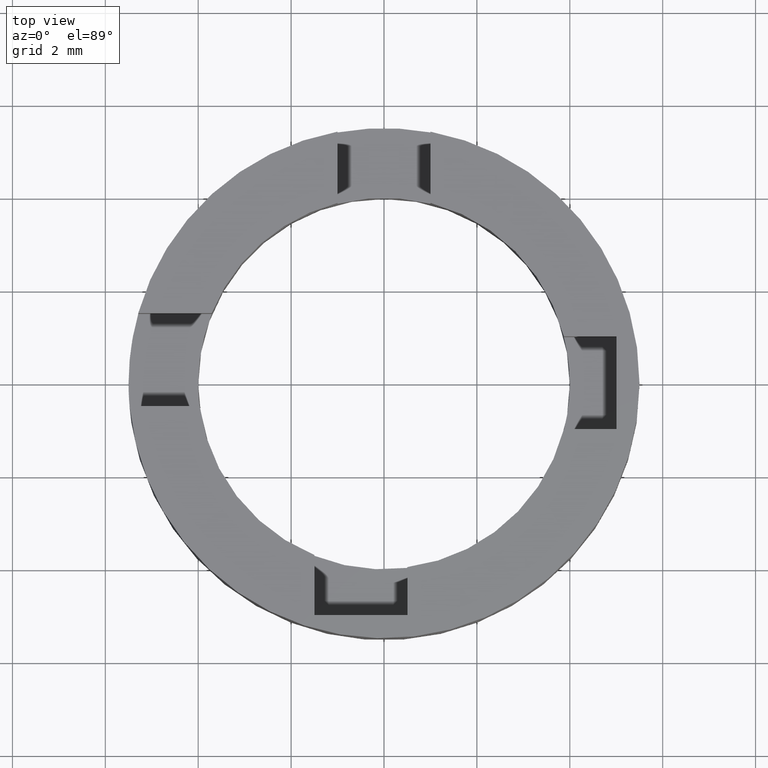
[diagram: clean part render]
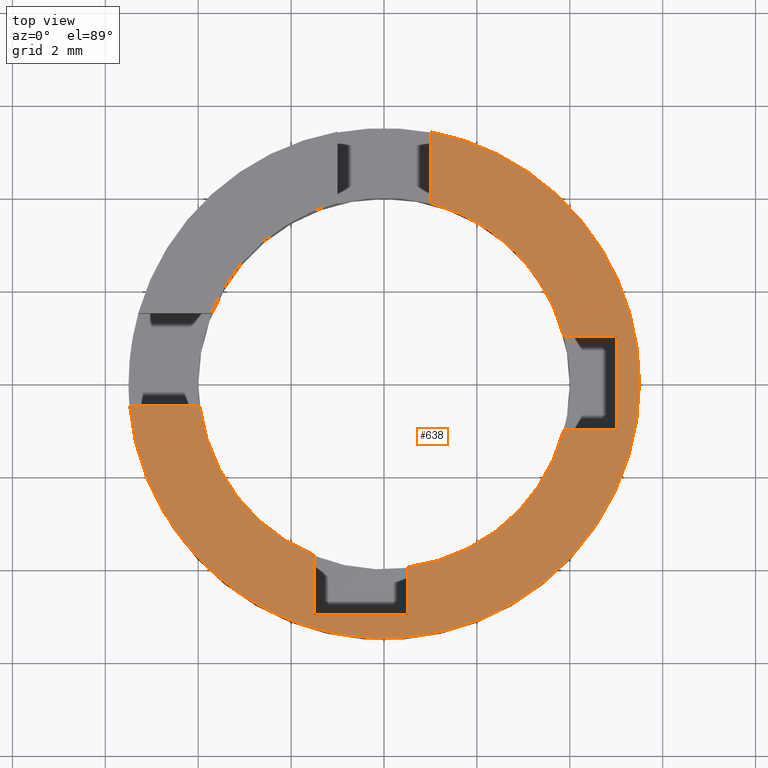
[diagram: same view with one face highlighted and labeled with its STEP entity id]
A machine part, top view. The second image highlights one B-rep face of the part: STEP entity #638.
In plain terms, the highlighted planar face has unit normal (0, 0, 1).
Its self-contained STEP definition (entity closure, byte-faithful):
#2 = VERTEX_POINT ( 'NONE', #606 ) ;
#6 = VERTEX_POINT ( 'NONE', #644 ) ;
#9 = CARTESIAN_POINT ( 'NONE',  ( 2.805037895306202067, -0.9999999999999540368, 2.500000000000000000 ) ) ;
#13 = LINE ( 'NONE', #204, #512 ) ;
#15 = EDGE_LOOP ( 'NONE', ( #304, #556, #546, #43, #218, #430, #36, #544, #551, #709, #49, #400, #559 ) ) ;
#29 = AXIS2_PLACEMENT_3D ( 'NONE', #327, #406, #573 ) ;
#31 = CARTESIAN_POINT ( 'NONE',  ( 3.872983346207428568, -0.9999999999999542588, 2.500000000000000000 ) ) ;
#36 = ORIENTED_EDGE ( 'NONE', *, *, #325, .F. ) ;
#43 = ORIENTED_EDGE ( 'NONE', *, *, #306, .F. ) ;
#49 = ORIENTED_EDGE ( 'NONE', *, *, #140, .F. ) ;
#55 = CARTESIAN_POINT ( 'NONE',  ( 0.000000000000000000, 0.000000000000000000, 2.500000000000000000 ) ) ;
#71 = CARTESIAN_POINT ( 'NONE',  ( -1.499999999999649614, -5.000000000000257572, 2.500000000000000000 ) ) ;
#86 = DIRECTION ( 'NONE',  ( 1.000000000000000000, 0.000000000000000000, 0.000000000000000000 ) ) ;
#91 = DIRECTION ( 'NONE',  ( -1.000000000000000000, 1.975801167895978460E-16, -0.000000000000000000 ) ) ;
#96 = CARTESIAN_POINT ( 'NONE',  ( 5.000000000000301981, -0.9999999999999544809, 2.500000000000000000 ) ) ;
#98 = DIRECTION ( 'NONE',  ( 0.000000000000000000, 1.000000000000000000, 0.000000000000000000 ) ) ;
#104 = LINE ( 'NONE', #561, #106 ) ;
#106 = VECTOR ( 'NONE', #657, 1000.000000000000000 ) ;
#109 = VECTOR ( 'NONE', #447, 1000.000000000000000 ) ;
#120 = DIRECTION ( 'NONE',  ( 1.000000000000000000, 0.000000000000000000, 0.000000000000000000 ) ) ;
#125 = EDGE_CURVE ( 'NONE', #773, #2, #507, .T. ) ;
#130 = AXIS2_PLACEMENT_3D ( 'NONE', #309, #359, #120 ) ;
#136 = DIRECTION ( 'NONE',  ( 0.000000000000000000, 0.000000000000000000, 1.000000000000000000 ) ) ;
#140 = EDGE_CURVE ( 'NONE', #243, #190, #13, .T. ) ;
#141 = DIRECTION ( 'NONE',  ( 1.000000000000000000, 0.000000000000000000, 0.000000000000000000 ) ) ;
#145 = CARTESIAN_POINT ( 'NONE',  ( 1.000000000000000000, 5.408326913195983465, 2.500000000000000000 ) ) ;
#156 = LINE ( 'NONE', #650, #692 ) ;
#163 = CIRCLE ( 'NONE', #652, 5.500000000000000000 ) ;
#165 = VECTOR ( 'NONE', #98, 1000.000000000000000 ) ;
#190 = VERTEX_POINT ( 'NONE', #423 ) ;
#194 = VERTEX_POINT ( 'NONE', #641 ) ;
#204 = CARTESIAN_POINT ( 'NONE',  ( -3.305037895305851681, -0.5000000000003044232, 2.500000000000000000 ) ) ;
#218 = ORIENTED_EDGE ( 'NONE', *, *, #620, .F. ) ;
#243 = VERTEX_POINT ( 'NONE', #416 ) ;
#269 = EDGE_CURVE ( 'NONE', #190, #426, #434, .T. ) ;
#304 = ORIENTED_EDGE ( 'NONE', *, *, #672, .F. ) ;
#306 = EDGE_CURVE ( 'NONE', #575, #194, #104, .T. ) ;
#307 = VERTEX_POINT ( 'NONE', #71 ) ;
#309 = CARTESIAN_POINT ( 'NONE',  ( 0.000000000000000000, 0.000000000000000000, 2.500000000000000000 ) ) ;
#310 = DIRECTION ( 'NONE',  ( 9.879005839479886135E-17, -1.000000000000000000, 0.000000000000000000 ) ) ;
#312 = CARTESIAN_POINT ( 'NONE',  ( 0.000000000000000000, 0.000000000000000000, 2.500000000000000000 ) ) ;
#319 = AXIS2_PLACEMENT_3D ( 'NONE', #312, #354, #86 ) ;
#325 = EDGE_CURVE ( 'NONE', #475, #6, #625, .T. ) ;
#327 = CARTESIAN_POINT ( 'NONE',  ( 0.000000000000000000, 0.000000000000000000, 2.500000000000000000 ) ) ;
#328 = CARTESIAN_POINT ( 'NONE',  ( -1.499999999999649614, -5.000000000000257572, 2.500000000000000000 ) ) ;
#334 = DIRECTION ( 'NONE',  ( 1.000000000000000000, 0.000000000000000000, 0.000000000000000000 ) ) ;
#354 = DIRECTION ( 'NONE',  ( 0.000000000000000000, 0.000000000000000000, 1.000000000000000000 ) ) ;
#357 = CARTESIAN_POINT ( 'NONE',  ( 0.000000000000000000, 0.000000000000000000, 2.500000000000000000 ) ) ;
#359 = DIRECTION ( 'NONE',  ( 0.000000000000000000, 0.000000000000000000, 1.000000000000000000 ) ) ;
#367 = DIRECTION ( 'NONE',  ( 0.000000000000000000, 0.000000000000000000, 1.000000000000000000 ) ) ;
#372 = DIRECTION ( 'NONE',  ( 1.000000000000000000, 0.000000000000000000, 0.000000000000000000 ) ) ;
#388 = EDGE_CURVE ( 'NONE', #6, #719, #711, .T. ) ;
#392 = EDGE_CURVE ( 'NONE', #307, #475, #405, .T. ) ;
#393 = DIRECTION ( 'NONE',  ( 1.000000000000000000, 0.000000000000000000, -0.000000000000000000 ) ) ;
#395 = EDGE_CURVE ( 'NONE', #194, #773, #402, .T. ) ;
#400 = ORIENTED_EDGE ( 'NONE', *, *, #558, .T. ) ;
#402 = LINE ( 'NONE', #591, #442 ) ;
#405 = LINE ( 'NONE', #328, #687 ) ;
#406 = DIRECTION ( 'NONE',  ( 0.000000000000000000, 0.000000000000000000, 1.000000000000000000 ) ) ;
#410 = LINE ( 'NONE', #436, #165 ) ;
#413 = VECTOR ( 'NONE', #595, 1000.000000000000000 ) ;
#416 = CARTESIAN_POINT ( 'NONE',  ( -5.477225575051632767, -0.5000000000003046452, 2.500000000000000000 ) ) ;
#418 = LINE ( 'NONE', #9, #413 ) ;
#423 = CARTESIAN_POINT ( 'NONE',  ( -3.968626966596846994, -0.5000000000003044232, 2.500000000000000000 ) ) ;
#426 = VERTEX_POINT ( 'NONE', #637 ) ;
#430 = ORIENTED_EDGE ( 'NONE', *, *, #388, .F. ) ;
#431 = FACE_OUTER_BOUND ( 'NONE', #15, .T. ) ;
#434 = CIRCLE ( 'NONE', #319, 4.000000000000000000 ) ;
#436 = CARTESIAN_POINT ( 'NONE',  ( 1.000000000000000000, 3.305037895305898310, 2.500000000000000000 ) ) ;
#442 = VECTOR ( 'NONE', #91, 1000.000000000000000 ) ;
#447 = DIRECTION ( 'NONE',  ( -1.481850875921982612E-16, 1.000000000000000000, -0.000000000000000000 ) ) ;
#475 = VERTEX_POINT ( 'NONE', #577 ) ;
#496 = VERTEX_POINT ( 'NONE', #502 ) ;
#502 = CARTESIAN_POINT ( 'NONE',  ( 5.500000000000000000, 6.735557395310442023E-16, 2.500000000000000000 ) ) ;
#507 = CIRCLE ( 'NONE', #130, 4.000000000000000000 ) ;
#512 = VECTOR ( 'NONE', #777, 1000.000000000000000 ) ;
#513 = PLANE ( 'NONE',  #578 ) ;
#528 = CARTESIAN_POINT ( 'NONE',  ( 0.5000000000003501643, -2.805037895306155882, 2.500000000000000000 ) ) ;
#537 = AXIS2_PLACEMENT_3D ( 'NONE', #357, #136, #141 ) ;
#544 = ORIENTED_EDGE ( 'NONE', *, *, #392, .F. ) ;
#546 = ORIENTED_EDGE ( 'NONE', *, *, #395, .F. ) ;
#551 = ORIENTED_EDGE ( 'NONE', *, *, #646, .F. ) ;
#556 = ORIENTED_EDGE ( 'NONE', *, *, #125, .F. ) ;
#558 = EDGE_CURVE ( 'NONE', #243, #496, #163, .T. ) ;
#559 = ORIENTED_EDGE ( 'NONE', *, *, #686, .T. ) ;
#561 = CARTESIAN_POINT ( 'NONE',  ( 5.000000000000301981, -0.9999999999999544809, 2.500000000000000000 ) ) ;
#563 = CARTESIAN_POINT ( 'NONE',  ( 3.872983346207404587, 1.000000000000045741, 2.500000000000000000 ) ) ;
#564 = DIRECTION ( 'NONE',  ( 0.000000000000000000, 0.000000000000000000, 1.000000000000000000 ) ) ;
#573 = DIRECTION ( 'NONE',  ( 1.000000000000000000, 0.000000000000000000, 0.000000000000000000 ) ) ;
#575 = VERTEX_POINT ( 'NONE', #96 ) ;
#577 = CARTESIAN_POINT ( 'NONE',  ( 0.5000000000003504974, -5.000000000000257572, 2.500000000000000000 ) ) ;
#578 = AXIS2_PLACEMENT_3D ( 'NONE', #733, #564, #393 ) ;
#591 = CARTESIAN_POINT ( 'NONE',  ( 2.805037895306201623, 1.000000000000045963, 2.500000000000000000 ) ) ;
#595 = DIRECTION ( 'NONE',  ( 1.000000000000000000, -1.975801167895978706E-16, 0.000000000000000000 ) ) ;
#606 = CARTESIAN_POINT ( 'NONE',  ( 1.000000000000000000, 3.872983346207417021, 2.500000000000000000 ) ) ;
#620 = EDGE_CURVE ( 'NONE', #719, #575, #418, .T. ) ;
#625 = LINE ( 'NONE', #528, #109 ) ;
#637 = CARTESIAN_POINT ( 'NONE',  ( -1.499999999999649614, -3.708099243547972712, 2.500000000000000000 ) ) ;
#638 = ADVANCED_FACE ( 'NONE', ( #431 ), #513, .T. ) ;
#641 = CARTESIAN_POINT ( 'NONE',  ( 5.000000000000301981, 1.000000000000045519, 2.500000000000000000 ) ) ;
#644 = CARTESIAN_POINT ( 'NONE',  ( 0.5000000000003502754, -3.968626966596842109, 2.500000000000000000 ) ) ;
#646 = EDGE_CURVE ( 'NONE', #426, #307, #156, .T. ) ;
#650 = CARTESIAN_POINT ( 'NONE',  ( -1.499999999999649836, -2.805037895306156326, 2.500000000000000000 ) ) ;
#652 = AXIS2_PLACEMENT_3D ( 'NONE', #55, #367, #334 ) ;
#657 = DIRECTION ( 'NONE',  ( 0.000000000000000000, 1.000000000000000000, 0.000000000000000000 ) ) ;
#672 = EDGE_CURVE ( 'NONE', #2, #726, #410, .T. ) ;
#686 = EDGE_CURVE ( 'NONE', #496, #726, #701, .T. ) ;
#687 = VECTOR ( 'NONE', #372, 1000.000000000000000 ) ;
#692 = VECTOR ( 'NONE', #310, 1000.000000000000000 ) ;
#701 = CIRCLE ( 'NONE', #537, 5.500000000000000000 ) ;
#709 = ORIENTED_EDGE ( 'NONE', *, *, #269, .F. ) ;
#711 = CIRCLE ( 'NONE', #29, 4.000000000000000000 ) ;
#719 = VERTEX_POINT ( 'NONE', #31 ) ;
#726 = VERTEX_POINT ( 'NONE', #145 ) ;
#733 = CARTESIAN_POINT ( 'NONE',  ( 0.000000000000000000, 0.000000000000000000, 2.500000000000000000 ) ) ;
#773 = VERTEX_POINT ( 'NONE', #563 ) ;
#777 = DIRECTION ( 'NONE',  ( 1.000000000000000000, 1.481850875921982612E-16, -0.000000000000000000 ) ) ;